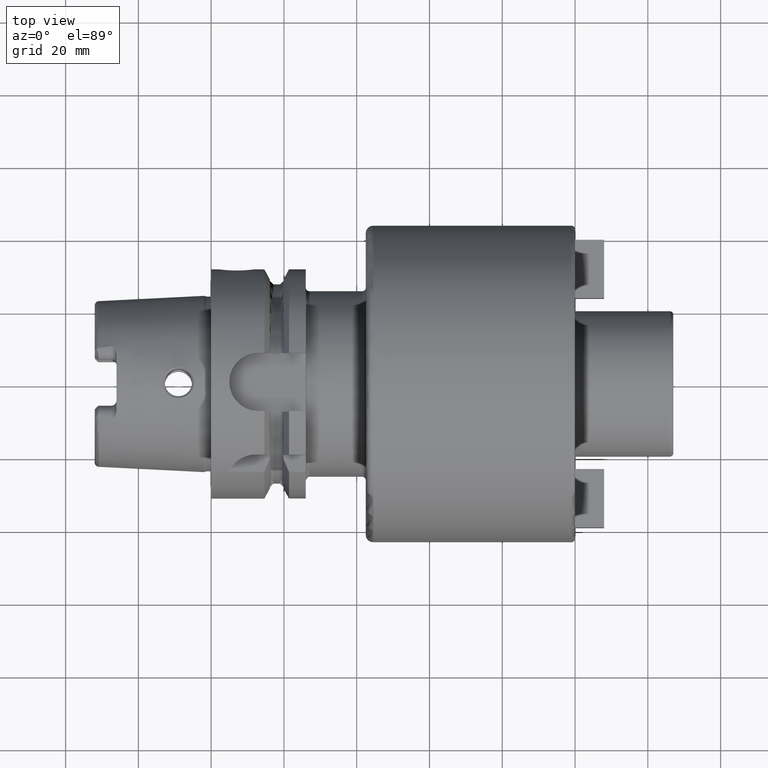
[diagram: clean part render]
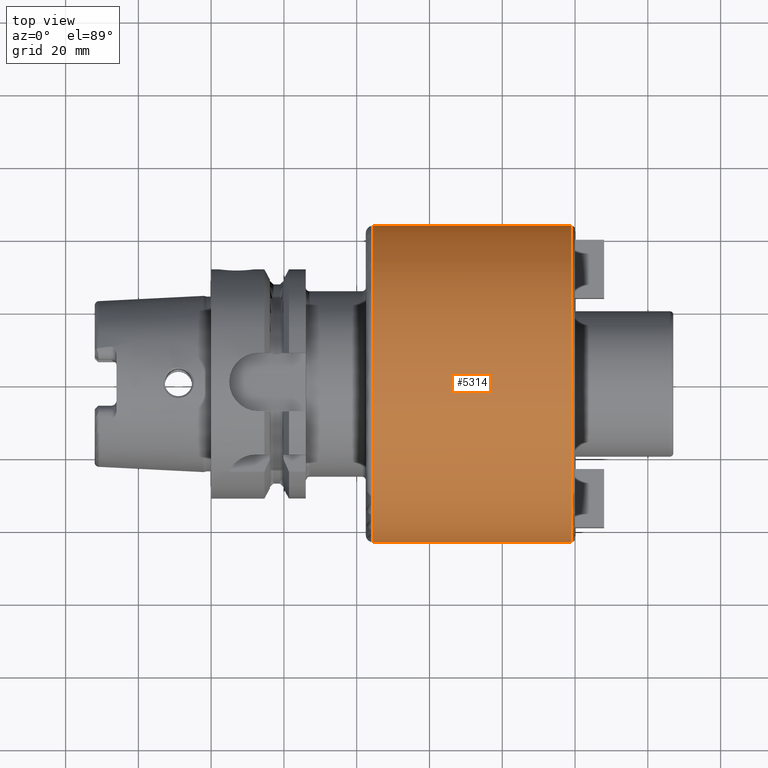
[diagram: same view with one face highlighted and labeled with its STEP entity id]
A machine part, top view. The second image highlights one B-rep face of the part: STEP entity #5314.
In plain terms, the highlighted cylindrical surface (partial cylindrical patch) has radius 43.5 mm, axis along (1, 0, 0).
Its self-contained STEP definition (entity closure, byte-faithful):
#1531=DIRECTION('',(-1.E0,0.E0,0.E0));
#1532=VECTOR('',#1531,5.45E1);
#1533=CARTESIAN_POINT('',(9.9E1,-4.35E1,1.303610490492E-14));
#1534=LINE('',#1533,#1532);
#1540=DIRECTION('',(-1.E0,0.E0,0.E0));
#1541=VECTOR('',#1540,5.45E1);
#1542=CARTESIAN_POINT('',(9.9E1,4.35E1,-1.436790829899E-14));
#1543=LINE('',#1542,#1541);
#1544=CARTESIAN_POINT('',(4.45E1,0.E0,0.E0));
#1545=DIRECTION('',(1.E0,0.E0,0.E0));
#1546=DIRECTION('',(0.E0,1.E0,0.E0));
#1547=AXIS2_PLACEMENT_3D('',#1544,#1545,#1546);
#1549=CARTESIAN_POINT('',(9.9E1,0.E0,0.E0));
#1550=DIRECTION('',(-1.E0,0.E0,0.E0));
#1551=DIRECTION('',(0.E0,-1.E0,0.E0));
#1552=AXIS2_PLACEMENT_3D('',#1549,#1550,#1551);
#3411=CARTESIAN_POINT('',(9.9E1,4.35E1,0.E0));
#3412=CARTESIAN_POINT('',(9.9E1,-4.35E1,-1.065442715258E-14));
#3413=VERTEX_POINT('',#3411);
#3414=VERTEX_POINT('',#3412);
#3512=CARTESIAN_POINT('',(4.45E1,-4.35E1,-1.065442715258E-14));
#3513=CARTESIAN_POINT('',(4.45E1,4.35E1,0.E0));
#3514=VERTEX_POINT('',#3512);
#3515=VERTEX_POINT('',#3513);
#5301=CARTESIAN_POINT('',(2.095E1,0.E0,0.E0));
#5302=DIRECTION('',(1.E0,0.E0,0.E0));
#5303=DIRECTION('',(0.E0,-1.E0,0.E0));
#5304=AXIS2_PLACEMENT_3D('',#5301,#5302,#5303);
#5305=CYLINDRICAL_SURFACE('',#5304,4.35E1);
#5307=ORIENTED_EDGE('',*,*,#5306,.F.);
#5308=ORIENTED_EDGE('',*,*,#5296,.F.);
#5310=ORIENTED_EDGE('',*,*,#5309,.F.);
#5311=ORIENTED_EDGE('',*,*,#5292,.T.);
#5312=EDGE_LOOP('',(#5307,#5308,#5310,#5311));
#5313=FACE_OUTER_BOUND('',#5312,.F.);
#5314=ADVANCED_FACE('',(#5313),#5305,.T.);
#1548=CIRCLE('',#1547,4.35E1);
#1553=CIRCLE('',#1552,4.35E1);
#5292=EDGE_CURVE('',#3414,#3514,#1534,.T.);
#5296=EDGE_CURVE('',#3413,#3515,#1543,.T.);
#5306=EDGE_CURVE('',#3515,#3514,#1548,.T.);
#5309=EDGE_CURVE('',#3414,#3413,#1553,.T.);